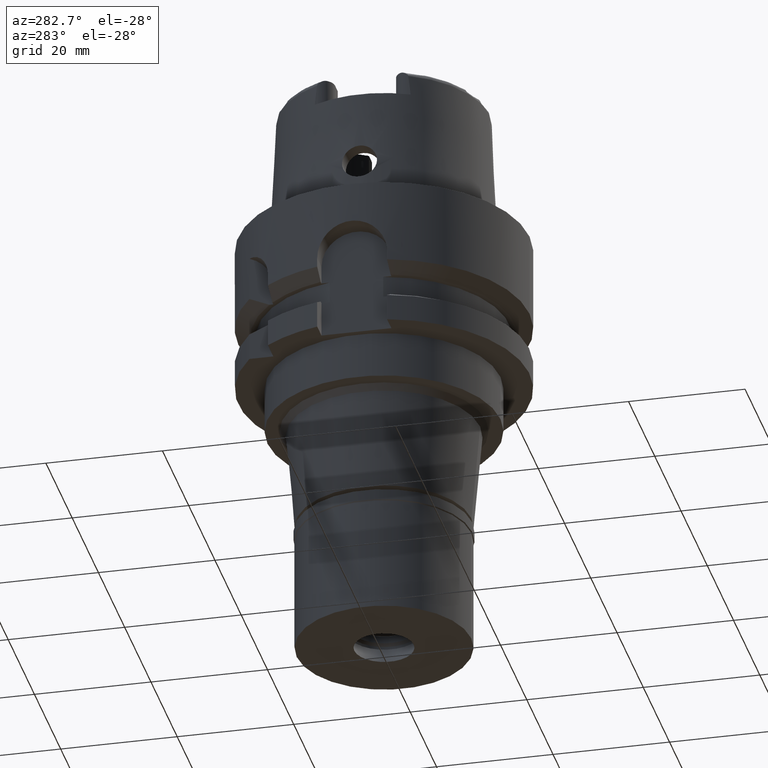
[diagram: clean part render]
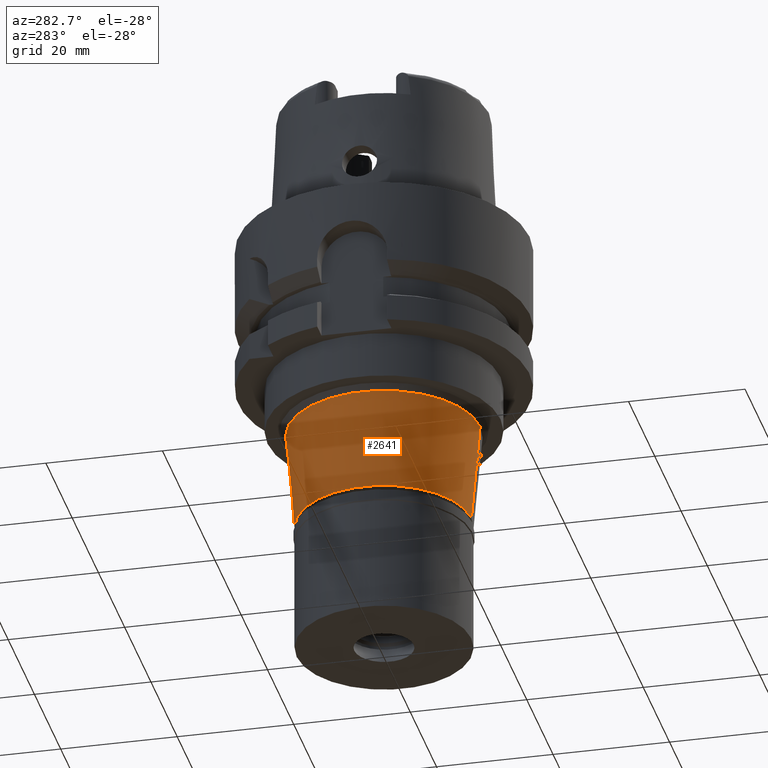
[diagram: same view with one face highlighted and labeled with its STEP entity id]
A machine part, auxiliary view. The second image highlights one B-rep face of the part: STEP entity #2641.
In plain terms, the highlighted conical surface has half-angle 5 deg.
Its self-contained STEP definition (entity closure, byte-faithful):
#274 = DIRECTION ( 'NONE',  ( 0.0000000000000000000, -0.08715574274780288344, -0.9961946980917327776 ) ) ;
#357 = CARTESIAN_POINT ( 'NONE',  ( 0.0000000000000000000, 16.50480501264999944, -35.00000000000000000 ) ) ;
#421 = VECTOR ( 'NONE', #274, 1000.000000000000227 ) ;
#602 = DIRECTION ( 'NONE',  ( 0.0000000000000000000, 1.000000000000000000, 0.0000000000000000000 ) ) ;
#718 = DIRECTION ( 'NONE',  ( 0.0000000000000000000, 1.000000000000000000, 0.0000000000000000000 ) ) ;
#759 = EDGE_CURVE ( 'NONE', #2756, #4346, #2436, .T. ) ;
#855 = DIRECTION ( 'NONE',  ( 0.0000000000000000000, 0.0000000000000000000, -1.000000000000000000 ) ) ;
#1096 = AXIS2_PLACEMENT_3D ( 'NONE', #3582, #1472, #602 ) ;
#1472 = DIRECTION ( 'NONE',  ( 0.0000000000000000000, 0.0000000000000000000, 1.000000000000000000 ) ) ;
#1647 = LINE ( 'NONE', #357, #421 ) ;
#1702 = DIRECTION ( 'NONE',  ( 0.0000000000000000000, -1.000000000000000000, 0.0000000000000000000 ) ) ;
#1844 = EDGE_CURVE ( 'NONE', #4346, #2916, #1647, .T. ) ;
#1877 = VECTOR ( 'NONE', #5330, 1000.000000000000227 ) ;
#2043 = CARTESIAN_POINT ( 'NONE',  ( 0.0000000000000000000, -16.50480501264999944, -35.00000000000000000 ) ) ;
#2054 = CARTESIAN_POINT ( 'NONE',  ( 0.0000000000000000000, 0.0000000000000000000, -52.20000000000000284 ) ) ;
#2081 = DIRECTION ( 'NONE',  ( 0.0000000000000000000, 0.0000000000000000000, 1.000000000000000000 ) ) ;
#2173 = AXIS2_PLACEMENT_3D ( 'NONE', #4287, #855, #1702 ) ;
#2436 = CIRCLE ( 'NONE', #2173, 16.50480501264999944 ) ;
#2641 = ADVANCED_FACE ( 'NONE', ( #2695 ), #4377, .T. ) ;
#2663 = AXIS2_PLACEMENT_3D ( 'NONE', #2054, #2081, #718 ) ;
#2687 = EDGE_CURVE ( 'NONE', #2756, #5445, #4106, .T. ) ;
#2695 = FACE_OUTER_BOUND ( 'NONE', #5122, .T. ) ;
#2756 = VERTEX_POINT ( 'NONE', #4997 ) ;
#2916 = VERTEX_POINT ( 'NONE', #3877 ) ;
#3086 = CARTESIAN_POINT ( 'NONE',  ( 0.0000000000000000000, 16.50480501264999944, -35.00000000000000000 ) ) ;
#3136 = ORIENTED_EDGE ( 'NONE', *, *, #2687, .F. ) ;
#3582 = CARTESIAN_POINT ( 'NONE',  ( 0.0000000000000000000, 0.0000000000000000000, -43.60000000000000142 ) ) ;
#3864 = ORIENTED_EDGE ( 'NONE', *, *, #1844, .T. ) ;
#3877 = CARTESIAN_POINT ( 'NONE',  ( 0.0000000000000000000, 15.00000000000000000, -52.20000000000000284 ) ) ;
#4106 = LINE ( 'NONE', #2043, #1877 ) ;
#4287 = CARTESIAN_POINT ( 'NONE',  ( 0.0000000000000000000, 0.0000000000000000000, -35.00000000000000000 ) ) ;
#4346 = VERTEX_POINT ( 'NONE', #3086 ) ;
#4359 = CIRCLE ( 'NONE', #2663, 15.00000000000000000 ) ;
#4366 = ORIENTED_EDGE ( 'NONE', *, *, #759, .T. ) ;
#4377 = CONICAL_SURFACE ( 'NONE', #1096, 15.75240250631999928, 0.08726646259969973729 ) ;
#4744 = EDGE_CURVE ( 'NONE', #2916, #5445, #4359, .T. ) ;
#4887 = CARTESIAN_POINT ( 'NONE',  ( 0.0000000000000000000, -15.00000000000000000, -52.20000000000000284 ) ) ;
#4997 = CARTESIAN_POINT ( 'NONE',  ( 0.0000000000000000000, -16.50480501264999944, -35.00000000000000000 ) ) ;
#5122 = EDGE_LOOP ( 'NONE', ( #5245, #3136, #4366, #3864 ) ) ;
#5245 = ORIENTED_EDGE ( 'NONE', *, *, #4744, .T. ) ;
#5330 = DIRECTION ( 'NONE',  ( 0.0000000000000000000, 0.08715574274780288344, -0.9961946980917327776 ) ) ;
#5445 = VERTEX_POINT ( 'NONE', #4887 ) ;